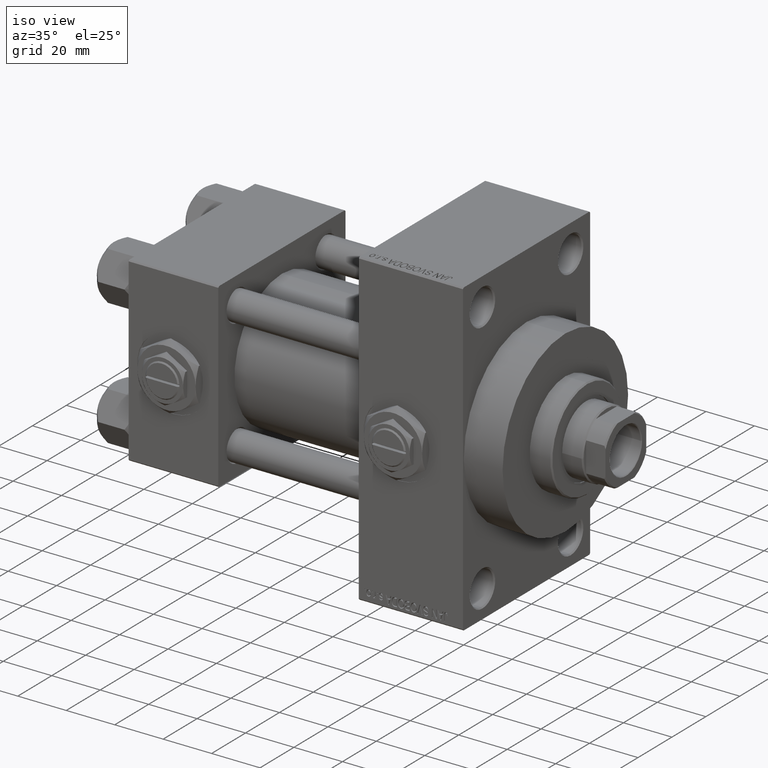
[diagram: clean part render]
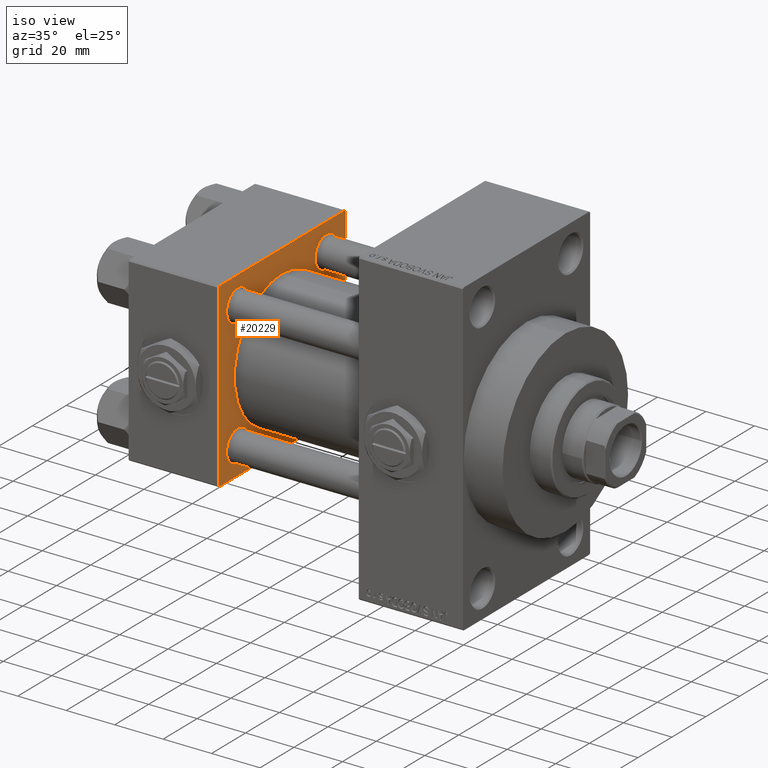
[diagram: same view with one face highlighted and labeled with its STEP entity id]
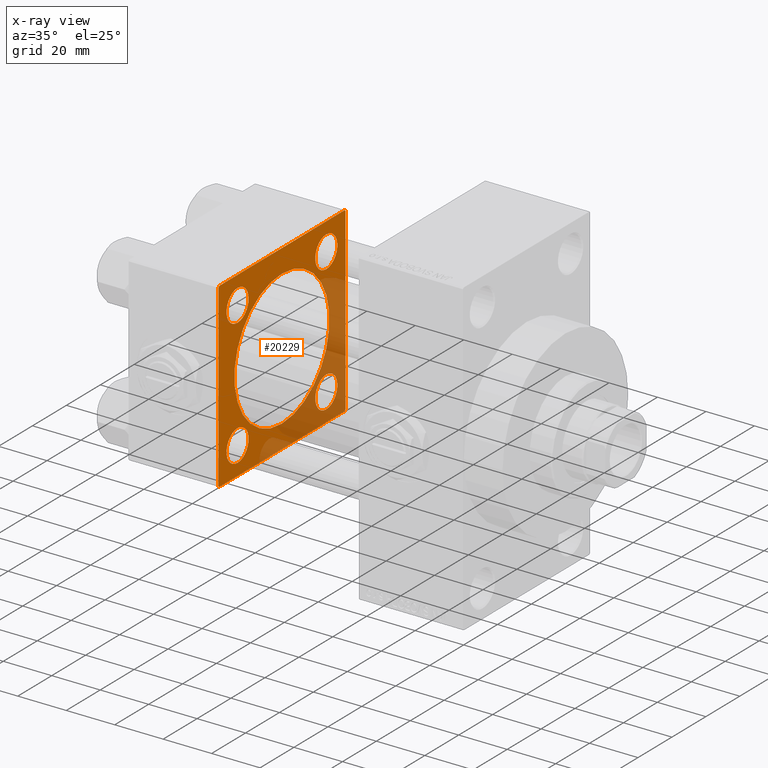
[diagram: x-ray of the same camera — body ghosted, the highlighted face saturated]
A machine part, iso view. The second image highlights one B-rep face of the part: STEP entity #20229.
The next image is the same camera in x-ray: the body ghosted, the highlighted face saturated — about 33% of this face is hidden behind the body in this view.
In plain terms, the highlighted planar face has unit normal (-1, 0, 0).
Its self-contained STEP definition (entity closure, byte-faithful):
#212 = DIRECTION ( 'NONE',  ( -1.000000000000000000, 0.000000000000000000, -0.000000000000000000 ) ) ;
#332 = ORIENTED_EDGE ( 'NONE', *, *, #28557, .F. ) ;
#957 = EDGE_CURVE ( 'NONE', #42342, #12519, #9986, .T. ) ;
#1922 = CARTESIAN_POINT ( 'NONE',  ( 37.00000000000000000, 26.14999999999999858, -26.15000000000000213 ) ) ;
#2208 = EDGE_CURVE ( 'NONE', #24942, #36080, #29106, .T. ) ;
#2719 = LINE ( 'NONE', #17922, #14907 ) ;
#2828 = VERTEX_POINT ( 'NONE', #16455 ) ;
#2866 = EDGE_CURVE ( 'NONE', #48467, #43822, #20935, .T. ) ;
#4131 = CIRCLE ( 'NONE', #6511, 6.500000000000057732 ) ;
#4211 = CARTESIAN_POINT ( 'NONE',  ( 37.00000000000000000, -37.50000000000000711, 36.99999999999999289 ) ) ;
#4713 = AXIS2_PLACEMENT_3D ( 'NONE', #41006, #6853, #44986 ) ;
#4730 = AXIS2_PLACEMENT_3D ( 'NONE', #33001, #25274, #6339 ) ;
#5013 = EDGE_CURVE ( 'NONE', #38867, #22768, #2719, .T. ) ;
#5249 = AXIS2_PLACEMENT_3D ( 'NONE', #33746, #48948, #33243 ) ;
#6114 = VERTEX_POINT ( 'NONE', #19658 ) ;
#6311 = EDGE_CURVE ( 'NONE', #15362, #47704, #13345, .T. ) ;
#6339 = DIRECTION ( 'NONE',  ( 0.000000000000000000, 0.000000000000000000, 1.000000000000000000 ) ) ;
#6343 = VECTOR ( 'NONE', #11646, 1000.000000000000000 ) ;
#6448 = AXIS2_PLACEMENT_3D ( 'NONE', #44103, #17916, #33123 ) ;
#6511 = AXIS2_PLACEMENT_3D ( 'NONE', #38619, #8216, #38863 ) ;
#6799 = AXIS2_PLACEMENT_3D ( 'NONE', #1922, #40060, #40303 ) ;
#6823 = FACE_BOUND ( 'NONE', #45133, .T. ) ;
#6853 = DIRECTION ( 'NONE',  ( 1.000000000000000000, -0.000000000000000000, 0.000000000000000000 ) ) ;
#7669 = LINE ( 'NONE', #26835, #6343 ) ;
#8216 = DIRECTION ( 'NONE',  ( -1.000000000000000000, 0.000000000000000000, -0.000000000000000000 ) ) ;
#8618 = VECTOR ( 'NONE', #11930, 1000.000000000000000 ) ;
#8669 = CARTESIAN_POINT ( 'NONE',  ( 37.00000000000000000, -2.602085213965210642E-15, 28.00000000000000000 ) ) ;
#8844 = EDGE_CURVE ( 'NONE', #33463, #32901, #33236, .T. ) ;
#8857 = ORIENTED_EDGE ( 'NONE', *, *, #38397, .T. ) ;
#9422 = ORIENTED_EDGE ( 'NONE', *, *, #34154, .T. ) ;
#9878 = CARTESIAN_POINT ( 'NONE',  ( 37.00000000000000000, 37.49999999999999289, 37.50000000000000000 ) ) ;
#9986 = CIRCLE ( 'NONE', #43421, 6.500000000000002665 ) ;
#10886 = CARTESIAN_POINT ( 'NONE',  ( 37.00000000000000000, -26.14999999999999147, 32.65000000000007674 ) ) ;
#11646 = DIRECTION ( 'NONE',  ( 0.000000000000000000, -1.000000000000000000, -9.251858538542971581E-17 ) ) ;
#11686 = EDGE_LOOP ( 'NONE', ( #38058, #22706, #41904, #30965, #17500, #8857, #19974, #29556 ) ) ;
#11930 = DIRECTION ( 'NONE',  ( 0.000000000000000000, 0.7071067811865524577, -0.7071067811865426878 ) ) ;
#12399 = CARTESIAN_POINT ( 'NONE',  ( 37.00000000000000000, -26.14999999999999147, -26.15000000000000924 ) ) ;
#12519 = VERTEX_POINT ( 'NONE', #40388 ) ;
#12600 = VECTOR ( 'NONE', #48696, 1000.000000000000000 ) ;
#12734 = LINE ( 'NONE', #46890, #36677 ) ;
#13303 = EDGE_CURVE ( 'NONE', #2828, #27091, #29374, .T. ) ;
#13345 = CIRCLE ( 'NONE', #38013, 6.500000000000002665 ) ;
#13396 = CARTESIAN_POINT ( 'NONE',  ( 37.00000000000000000, -37.00000000000002132, -37.50000000000000711 ) ) ;
#13523 = ORIENTED_EDGE ( 'NONE', *, *, #2208, .T. ) ;
#13693 = DIRECTION ( 'NONE',  ( 0.000000000000000000, -0.7071067811865474617, 0.7071067811865474617 ) ) ;
#13921 = EDGE_CURVE ( 'NONE', #22768, #6114, #7669, .T. ) ;
#14588 = CARTESIAN_POINT ( 'NONE',  ( 37.00000000000000000, 37.49999999999999289, -36.99999999999998579 ) ) ;
#14907 = VECTOR ( 'NONE', #13693, 1000.000000000000114 ) ;
#15362 = VERTEX_POINT ( 'NONE', #41821 ) ;
#16361 = LINE ( 'NONE', #9878, #32803 ) ;
#16365 = EDGE_LOOP ( 'NONE', ( #332, #48115 ) ) ;
#16455 = CARTESIAN_POINT ( 'NONE',  ( 37.00000000000000000, 8.269258236473776482E-16, -28.00000000000000000 ) ) ;
#17137 = EDGE_CURVE ( 'NONE', #12519, #42342, #39085, .T. ) ;
#17196 = CARTESIAN_POINT ( 'NONE',  ( 37.00000000000000000, 37.49999999999999289, -37.50000000000000000 ) ) ;
#17500 = ORIENTED_EDGE ( 'NONE', *, *, #13921, .T. ) ;
#17545 = FACE_BOUND ( 'NONE', #37373, .T. ) ;
#17916 = DIRECTION ( 'NONE',  ( -1.000000000000000000, 0.000000000000000000, -0.000000000000000000 ) ) ;
#17922 = CARTESIAN_POINT ( 'NONE',  ( 37.00000000000000000, 36.99999999999999289, 37.50000000000000000 ) ) ;
#18035 = FACE_BOUND ( 'NONE', #46294, .T. ) ;
#18302 = ORIENTED_EDGE ( 'NONE', *, *, #6311, .T. ) ;
#18371 = DIRECTION ( 'NONE',  ( -1.000000000000000000, 0.000000000000000000, -0.000000000000000000 ) ) ;
#18534 = FACE_BOUND ( 'NONE', #44551, .T. ) ;
#18863 = CARTESIAN_POINT ( 'NONE',  ( 37.00000000000000000, 26.14999999999999858, -26.15000000000000213 ) ) ;
#19405 = DIRECTION ( 'NONE',  ( -0.000000000000000000, -0.7071067811865474617, -0.7071067811865474617 ) ) ;
#19658 = CARTESIAN_POINT ( 'NONE',  ( 37.00000000000000000, -37.00000000000000711, 37.49999999999999289 ) ) ;
#19744 = EDGE_CURVE ( 'NONE', #24244, #38482, #43063, .T. ) ;
#19974 = ORIENTED_EDGE ( 'NONE', *, *, #8844, .T. ) ;
#20131 = ORIENTED_EDGE ( 'NONE', *, *, #957, .T. ) ;
#20229 = ADVANCED_FACE ( 'NONE', ( #6823, #17545, #18035, #18534, #48700, #44218 ), #22018, .F. ) ;
#20935 = LINE ( 'NONE', #17196, #30745 ) ;
#21697 = DIRECTION ( 'NONE',  ( -1.000000000000000000, 0.000000000000000000, -0.000000000000000000 ) ) ;
#21831 = EDGE_CURVE ( 'NONE', #38482, #24244, #4131, .T. ) ;
#22018 = PLANE ( 'NONE',  #22347 ) ;
#22234 = CIRCLE ( 'NONE', #4730, 6.500000000000064837 ) ;
#22347 = AXIS2_PLACEMENT_3D ( 'NONE', #44459, #26001, #43979 ) ;
#22706 = ORIENTED_EDGE ( 'NONE', *, *, #47454, .T. ) ;
#22768 = VERTEX_POINT ( 'NONE', #46591 ) ;
#23142 = EDGE_CURVE ( 'NONE', #38867, #33873, #16361, .T. ) ;
#23162 = AXIS2_PLACEMENT_3D ( 'NONE', #12399, #212, #34844 ) ;
#24244 = VERTEX_POINT ( 'NONE', #43929 ) ;
#24280 = CARTESIAN_POINT ( 'NONE',  ( 37.00000000000000000, -37.50000000000000000, -37.00000000000003553 ) ) ;
#24829 = DIRECTION ( 'NONE',  ( 0.000000000000000000, 0.000000000000000000, -1.000000000000000000 ) ) ;
#24942 = VERTEX_POINT ( 'NONE', #32828 ) ;
#25274 = DIRECTION ( 'NONE',  ( -1.000000000000000000, 0.000000000000000000, -0.000000000000000000 ) ) ;
#26001 = DIRECTION ( 'NONE',  ( -1.000000000000000000, 0.000000000000000000, -0.000000000000000000 ) ) ;
#26161 = CARTESIAN_POINT ( 'NONE',  ( 37.00000000000000000, 26.14999999999999858, 26.15000000000000213 ) ) ;
#26382 = LINE ( 'NONE', #4211, #36481 ) ;
#26835 = CARTESIAN_POINT ( 'NONE',  ( 37.00000000000000000, 37.49999999999999289, 37.50000000000000000 ) ) ;
#27091 = VERTEX_POINT ( 'NONE', #8669 ) ;
#27325 = CARTESIAN_POINT ( 'NONE',  ( 37.00000000000000000, 26.14999999999999858, 19.64999999999999858 ) ) ;
#28557 = EDGE_CURVE ( 'NONE', #27091, #2828, #46541, .T. ) ;
#29017 = AXIS2_PLACEMENT_3D ( 'NONE', #43680, #42941, #39204 ) ;
#29106 = CIRCLE ( 'NONE', #5249, 6.500000000000064837 ) ;
#29374 = CIRCLE ( 'NONE', #4713, 28.00000000000000000 ) ;
#29556 = ORIENTED_EDGE ( 'NONE', *, *, #38338, .T. ) ;
#30150 = ORIENTED_EDGE ( 'NONE', *, *, #21831, .T. ) ;
#30745 = VECTOR ( 'NONE', #42642, 1000.000000000000000 ) ;
#30965 = ORIENTED_EDGE ( 'NONE', *, *, #5013, .T. ) ;
#32803 = VECTOR ( 'NONE', #24829, 1000.000000000000000 ) ;
#32828 = CARTESIAN_POINT ( 'NONE',  ( 37.00000000000000000, -26.14999999999999147, 19.64999999999994529 ) ) ;
#32901 = VERTEX_POINT ( 'NONE', #24280 ) ;
#33001 = CARTESIAN_POINT ( 'NONE',  ( 37.00000000000000000, -26.14999999999999147, 26.15000000000000924 ) ) ;
#33123 = DIRECTION ( 'NONE',  ( 0.000000000000000000, 0.000000000000000000, 1.000000000000000000 ) ) ;
#33236 = LINE ( 'NONE', #48443, #12600 ) ;
#33243 = DIRECTION ( 'NONE',  ( 0.000000000000000000, 0.000000000000000000, 1.000000000000000000 ) ) ;
#33463 = VERTEX_POINT ( 'NONE', #35626 ) ;
#33746 = CARTESIAN_POINT ( 'NONE',  ( 37.00000000000000000, -26.14999999999999147, 26.15000000000000924 ) ) ;
#33873 = VERTEX_POINT ( 'NONE', #14588 ) ;
#34154 = EDGE_CURVE ( 'NONE', #47704, #15362, #35444, .T. ) ;
#34844 = DIRECTION ( 'NONE',  ( 0.000000000000000000, 0.000000000000000000, 1.000000000000000000 ) ) ;
#35444 = CIRCLE ( 'NONE', #6799, 6.500000000000002665 ) ;
#35626 = CARTESIAN_POINT ( 'NONE',  ( 37.00000000000000000, -37.50000000000000711, 36.99999999999999289 ) ) ;
#36080 = VERTEX_POINT ( 'NONE', #10886 ) ;
#36481 = VECTOR ( 'NONE', #19405, 1000.000000000000114 ) ;
#36583 = CARTESIAN_POINT ( 'NONE',  ( 37.00000000000000000, -26.14999999999999147, -19.64999999999995239 ) ) ;
#36677 = VECTOR ( 'NONE', #46402, 1000.000000000000114 ) ;
#37373 = EDGE_LOOP ( 'NONE', ( #18302, #9422 ) ) ;
#37887 = CARTESIAN_POINT ( 'NONE',  ( 37.00000000000000000, 26.14999999999999858, -19.65000000000000213 ) ) ;
#38013 = AXIS2_PLACEMENT_3D ( 'NONE', #18863, #18371, #49030 ) ;
#38058 = ORIENTED_EDGE ( 'NONE', *, *, #2866, .F. ) ;
#38110 = CARTESIAN_POINT ( 'NONE',  ( 37.00000000000000000, -37.00000000000002132, -37.50000000000000711 ) ) ;
#38338 = EDGE_CURVE ( 'NONE', #32901, #43822, #41118, .T. ) ;
#38397 = EDGE_CURVE ( 'NONE', #6114, #33463, #26382, .T. ) ;
#38482 = VERTEX_POINT ( 'NONE', #36583 ) ;
#38619 = CARTESIAN_POINT ( 'NONE',  ( 37.00000000000000000, -26.14999999999999147, -26.15000000000000924 ) ) ;
#38863 = DIRECTION ( 'NONE',  ( 0.000000000000000000, 0.000000000000000000, 1.000000000000000000 ) ) ;
#38867 = VERTEX_POINT ( 'NONE', #48909 ) ;
#39085 = CIRCLE ( 'NONE', #6448, 6.500000000000002665 ) ;
#39204 = DIRECTION ( 'NONE',  ( 0.000000000000000000, 0.000000000000000000, 1.000000000000000000 ) ) ;
#39997 = EDGE_CURVE ( 'NONE', #36080, #24942, #22234, .T. ) ;
#40060 = DIRECTION ( 'NONE',  ( -1.000000000000000000, 0.000000000000000000, -0.000000000000000000 ) ) ;
#40303 = DIRECTION ( 'NONE',  ( 0.000000000000000000, 0.000000000000000000, 1.000000000000000000 ) ) ;
#40388 = CARTESIAN_POINT ( 'NONE',  ( 37.00000000000000000, 26.14999999999999858, 32.65000000000001279 ) ) ;
#41006 = CARTESIAN_POINT ( 'NONE',  ( 37.00000000000000000, -2.602085213965210642E-15, 0.000000000000000000 ) ) ;
#41118 = LINE ( 'NONE', #38110, #8618 ) ;
#41821 = CARTESIAN_POINT ( 'NONE',  ( 37.00000000000000000, 26.14999999999999858, -32.65000000000000568 ) ) ;
#41904 = ORIENTED_EDGE ( 'NONE', *, *, #23142, .F. ) ;
#42059 = ORIENTED_EDGE ( 'NONE', *, *, #19744, .T. ) ;
#42168 = ORIENTED_EDGE ( 'NONE', *, *, #17137, .T. ) ;
#42342 = VERTEX_POINT ( 'NONE', #27325 ) ;
#42642 = DIRECTION ( 'NONE',  ( 0.000000000000000000, -1.000000000000000000, -9.251858538542972814E-17 ) ) ;
#42941 = DIRECTION ( 'NONE',  ( 1.000000000000000000, -0.000000000000000000, 0.000000000000000000 ) ) ;
#43063 = CIRCLE ( 'NONE', #23162, 6.500000000000057732 ) ;
#43421 = AXIS2_PLACEMENT_3D ( 'NONE', #26161, #21697, #45359 ) ;
#43680 = CARTESIAN_POINT ( 'NONE',  ( 37.00000000000000000, -2.602085213965210642E-15, 0.000000000000000000 ) ) ;
#43822 = VERTEX_POINT ( 'NONE', #13396 ) ;
#43929 = CARTESIAN_POINT ( 'NONE',  ( 37.00000000000000000, -26.14999999999999147, -32.65000000000006963 ) ) ;
#43979 = DIRECTION ( 'NONE',  ( -0.000000000000000000, 0.000000000000000000, 1.000000000000000000 ) ) ;
#44103 = CARTESIAN_POINT ( 'NONE',  ( 37.00000000000000000, 26.14999999999999858, 26.15000000000000213 ) ) ;
#44218 = FACE_OUTER_BOUND ( 'NONE', #11686, .T. ) ;
#44459 = CARTESIAN_POINT ( 'NONE',  ( 37.00000000000000000, 0.000000000000000000, 0.000000000000000000 ) ) ;
#44551 = EDGE_LOOP ( 'NONE', ( #20131, #42168 ) ) ;
#44778 = ORIENTED_EDGE ( 'NONE', *, *, #39997, .T. ) ;
#44873 = CARTESIAN_POINT ( 'NONE',  ( 37.00000000000000000, 36.99999999999997868, -37.50000000000000000 ) ) ;
#44986 = DIRECTION ( 'NONE',  ( 0.000000000000000000, 0.000000000000000000, 1.000000000000000000 ) ) ;
#45133 = EDGE_LOOP ( 'NONE', ( #42059, #30150 ) ) ;
#45359 = DIRECTION ( 'NONE',  ( 0.000000000000000000, 0.000000000000000000, 1.000000000000000000 ) ) ;
#46294 = EDGE_LOOP ( 'NONE', ( #13523, #44778 ) ) ;
#46402 = DIRECTION ( 'NONE',  ( -0.000000000000000000, 0.7071067811865474617, 0.7071067811865474617 ) ) ;
#46541 = CIRCLE ( 'NONE', #29017, 28.00000000000000000 ) ;
#46591 = CARTESIAN_POINT ( 'NONE',  ( 37.00000000000000000, 36.99999999999999289, 37.50000000000000000 ) ) ;
#46890 = CARTESIAN_POINT ( 'NONE',  ( 37.00000000000000000, 37.49999999999999289, -36.99999999999998579 ) ) ;
#47454 = EDGE_CURVE ( 'NONE', #48467, #33873, #12734, .T. ) ;
#47704 = VERTEX_POINT ( 'NONE', #37887 ) ;
#48115 = ORIENTED_EDGE ( 'NONE', *, *, #13303, .F. ) ;
#48443 = CARTESIAN_POINT ( 'NONE',  ( 37.00000000000000000, -37.50000000000000711, 37.49999999999999289 ) ) ;
#48467 = VERTEX_POINT ( 'NONE', #44873 ) ;
#48696 = DIRECTION ( 'NONE',  ( 0.000000000000000000, 9.251858538542971581E-17, -1.000000000000000000 ) ) ;
#48700 = FACE_BOUND ( 'NONE', #16365, .T. ) ;
#48909 = CARTESIAN_POINT ( 'NONE',  ( 37.00000000000000000, 37.49999999999999289, 37.00000000000000000 ) ) ;
#48948 = DIRECTION ( 'NONE',  ( -1.000000000000000000, 0.000000000000000000, -0.000000000000000000 ) ) ;
#49030 = DIRECTION ( 'NONE',  ( 0.000000000000000000, 0.000000000000000000, 1.000000000000000000 ) ) ;